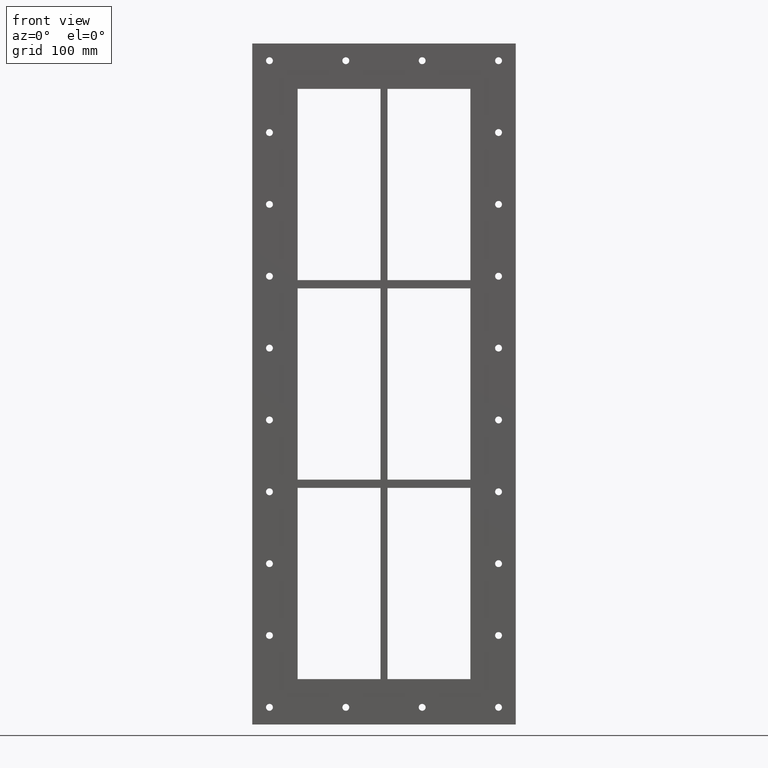
[diagram: clean part render]
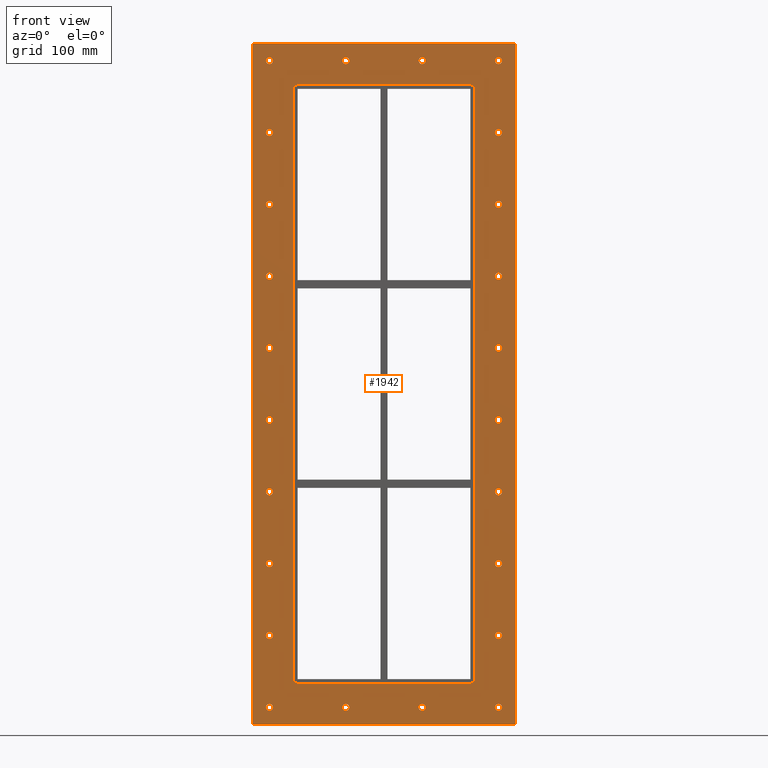
[diagram: same view with one face highlighted and labeled with its STEP entity id]
A machine part, front view. The second image highlights one B-rep face of the part: STEP entity #1942.
In plain terms, the highlighted planar face has unit normal (0, 1, 0).
Its self-contained STEP definition (entity closure, byte-faithful):
#84=CARTESIAN_POINT('',(-161.50000000000006,0.0,-470.0));
#85=VERTEX_POINT('',#84);
#86=CARTESIAN_POINT('',(-166.50000000000006,0.0,-470.0));
#87=DIRECTION('',(0.0,1.0,0.0));
#88=DIRECTION('',(1.0,0.0,0.0));
#89=AXIS2_PLACEMENT_3D('',#86,#87,#88);
#90=CIRCLE('',#89,5.0);
#91=EDGE_CURVE('',#85,#85,#90,.T.);
#112=CARTESIAN_POINT('',(171.5,0.0,-365.55999999999995));
#113=VERTEX_POINT('',#112);
#114=CARTESIAN_POINT('',(166.5,0.0,-365.55999999999995));
#115=DIRECTION('',(0.0,1.0,0.0));
#116=DIRECTION('',(1.0,0.0,0.0));
#117=AXIS2_PLACEMENT_3D('',#114,#115,#116);
#118=CIRCLE('',#117,5.0);
#119=EDGE_CURVE('',#113,#113,#118,.T.);
#140=CARTESIAN_POINT('',(-161.50000000000006,0.0,-365.55999999999995));
#141=VERTEX_POINT('',#140);
#142=CARTESIAN_POINT('',(-166.50000000000006,0.0,-365.55999999999995));
#143=DIRECTION('',(0.0,1.0,0.0));
#144=DIRECTION('',(1.0,0.0,0.0));
#145=AXIS2_PLACEMENT_3D('',#142,#143,#144);
#146=CIRCLE('',#145,5.0);
#147=EDGE_CURVE('',#141,#141,#146,.T.);
#168=CARTESIAN_POINT('',(171.5,0.0,-261.11999999999995));
#169=VERTEX_POINT('',#168);
#170=CARTESIAN_POINT('',(166.5,0.0,-261.11999999999995));
#171=DIRECTION('',(0.0,1.0,0.0));
#172=DIRECTION('',(1.0,0.0,0.0));
#173=AXIS2_PLACEMENT_3D('',#170,#171,#172);
#174=CIRCLE('',#173,5.0);
#175=EDGE_CURVE('',#169,#169,#174,.T.);
#196=CARTESIAN_POINT('',(-161.50000000000006,0.0,-261.11999999999995));
#197=VERTEX_POINT('',#196);
#198=CARTESIAN_POINT('',(-166.50000000000006,0.0,-261.11999999999995));
#199=DIRECTION('',(0.0,1.0,0.0));
#200=DIRECTION('',(1.0,0.0,0.0));
#201=AXIS2_PLACEMENT_3D('',#198,#199,#200);
#202=CIRCLE('',#201,5.0);
#203=EDGE_CURVE('',#197,#197,#202,.T.);
#224=CARTESIAN_POINT('',(171.5,0.0,-156.67999999999989));
#225=VERTEX_POINT('',#224);
#226=CARTESIAN_POINT('',(166.5,0.0,-156.67999999999989));
#227=DIRECTION('',(0.0,1.0,0.0));
#228=DIRECTION('',(1.0,0.0,0.0));
#229=AXIS2_PLACEMENT_3D('',#226,#227,#228);
#230=CIRCLE('',#229,5.0);
#231=EDGE_CURVE('',#225,#225,#230,.T.);
#252=CARTESIAN_POINT('',(-161.50000000000006,0.0,-156.67999999999989));
#253=VERTEX_POINT('',#252);
#254=CARTESIAN_POINT('',(-166.50000000000006,0.0,-156.67999999999989));
#255=DIRECTION('',(0.0,1.0,0.0));
#256=DIRECTION('',(1.0,0.0,0.0));
#257=AXIS2_PLACEMENT_3D('',#254,#255,#256);
#258=CIRCLE('',#257,5.0);
#259=EDGE_CURVE('',#253,#253,#258,.T.);
#280=CARTESIAN_POINT('',(171.5,0.0,-52.239999999999952));
#281=VERTEX_POINT('',#280);
#282=CARTESIAN_POINT('',(166.5,0.0,-52.239999999999952));
#283=DIRECTION('',(0.0,1.0,0.0));
#284=DIRECTION('',(1.0,0.0,0.0));
#285=AXIS2_PLACEMENT_3D('',#282,#283,#284);
#286=CIRCLE('',#285,5.0);
#287=EDGE_CURVE('',#281,#281,#286,.T.);
#308=CARTESIAN_POINT('',(-161.50000000000006,0.0,-52.239999999999952));
#309=VERTEX_POINT('',#308);
#310=CARTESIAN_POINT('',(-166.50000000000006,0.0,-52.239999999999952));
#311=DIRECTION('',(0.0,1.0,0.0));
#312=DIRECTION('',(1.0,0.0,0.0));
#313=AXIS2_PLACEMENT_3D('',#310,#311,#312);
#314=CIRCLE('',#313,5.0);
#315=EDGE_CURVE('',#309,#309,#314,.T.);
#336=CARTESIAN_POINT('',(171.5,0.0,52.200000000000074));
#337=VERTEX_POINT('',#336);
#338=CARTESIAN_POINT('',(166.5,0.0,52.200000000000074));
#339=DIRECTION('',(0.0,1.0,0.0));
#340=DIRECTION('',(1.0,0.0,0.0));
#341=AXIS2_PLACEMENT_3D('',#338,#339,#340);
#342=CIRCLE('',#341,5.0);
#343=EDGE_CURVE('',#337,#337,#342,.T.);
#364=CARTESIAN_POINT('',(-161.50000000000006,0.0,52.200000000000074));
#365=VERTEX_POINT('',#364);
#366=CARTESIAN_POINT('',(-166.50000000000006,0.0,52.200000000000074));
#367=DIRECTION('',(0.0,1.0,0.0));
#368=DIRECTION('',(1.0,0.0,0.0));
#369=AXIS2_PLACEMENT_3D('',#366,#367,#368);
#370=CIRCLE('',#369,5.0);
#371=EDGE_CURVE('',#365,#365,#370,.T.);
#392=CARTESIAN_POINT('',(171.5,0.0,156.6400000000001));
#393=VERTEX_POINT('',#392);
#394=CARTESIAN_POINT('',(166.5,0.0,156.6400000000001));
#395=DIRECTION('',(0.0,1.0,0.0));
#396=DIRECTION('',(1.0,0.0,0.0));
#397=AXIS2_PLACEMENT_3D('',#394,#395,#396);
#398=CIRCLE('',#397,5.0);
#399=EDGE_CURVE('',#393,#393,#398,.T.);
#420=CARTESIAN_POINT('',(-161.50000000000006,0.0,156.6400000000001));
#421=VERTEX_POINT('',#420);
#422=CARTESIAN_POINT('',(-166.50000000000006,0.0,156.6400000000001));
#423=DIRECTION('',(0.0,1.0,0.0));
#424=DIRECTION('',(1.0,0.0,0.0));
#425=AXIS2_PLACEMENT_3D('',#422,#423,#424);
#426=CIRCLE('',#425,5.0);
#427=EDGE_CURVE('',#421,#421,#426,.T.);
#448=CARTESIAN_POINT('',(171.5,0.0,261.08000000000004));
#449=VERTEX_POINT('',#448);
#450=CARTESIAN_POINT('',(166.5,0.0,261.08000000000004));
#451=DIRECTION('',(0.0,1.0,0.0));
#452=DIRECTION('',(1.0,0.0,0.0));
#453=AXIS2_PLACEMENT_3D('',#450,#451,#452);
#454=CIRCLE('',#453,5.0);
#455=EDGE_CURVE('',#449,#449,#454,.T.);
#476=CARTESIAN_POINT('',(-161.50000000000006,0.0,261.08000000000004));
#477=VERTEX_POINT('',#476);
#478=CARTESIAN_POINT('',(-166.50000000000006,0.0,261.08000000000004));
#479=DIRECTION('',(0.0,1.0,0.0));
#480=DIRECTION('',(1.0,0.0,0.0));
#481=AXIS2_PLACEMENT_3D('',#478,#479,#480);
#482=CIRCLE('',#481,5.0);
#483=EDGE_CURVE('',#477,#477,#482,.T.);
#504=CARTESIAN_POINT('',(171.5,0.0,365.5200000000001));
#505=VERTEX_POINT('',#504);
#506=CARTESIAN_POINT('',(166.5,0.0,365.5200000000001));
#507=DIRECTION('',(0.0,1.0,0.0));
#508=DIRECTION('',(1.0,0.0,0.0));
#509=AXIS2_PLACEMENT_3D('',#506,#507,#508);
#510=CIRCLE('',#509,5.0);
#511=EDGE_CURVE('',#505,#505,#510,.T.);
#532=CARTESIAN_POINT('',(-161.50000000000006,0.0,365.5200000000001));
#533=VERTEX_POINT('',#532);
#534=CARTESIAN_POINT('',(-166.50000000000006,0.0,365.5200000000001));
#535=DIRECTION('',(0.0,1.0,0.0));
#536=DIRECTION('',(1.0,0.0,0.0));
#537=AXIS2_PLACEMENT_3D('',#534,#535,#536);
#538=CIRCLE('',#537,5.0);
#539=EDGE_CURVE('',#533,#533,#538,.T.);
#560=CARTESIAN_POINT('',(-50.500000000000043,0.0,469.96000000000009));
#561=VERTEX_POINT('',#560);
#562=CARTESIAN_POINT('',(-55.500000000000043,0.0,469.96000000000009));
#563=DIRECTION('',(0.0,1.0,0.0));
#564=DIRECTION('',(1.0,0.0,0.0));
#565=AXIS2_PLACEMENT_3D('',#562,#563,#564);
#566=CIRCLE('',#565,5.0);
#567=EDGE_CURVE('',#561,#561,#566,.T.);
#588=CARTESIAN_POINT('',(-50.500000000000043,0.0,-470.0));
#589=VERTEX_POINT('',#588);
#590=CARTESIAN_POINT('',(-55.500000000000043,0.0,-470.0));
#591=DIRECTION('',(0.0,1.0,0.0));
#592=DIRECTION('',(1.0,0.0,0.0));
#593=AXIS2_PLACEMENT_3D('',#590,#591,#592);
#594=CIRCLE('',#593,5.0);
#595=EDGE_CURVE('',#589,#589,#594,.T.);
#616=CARTESIAN_POINT('',(60.499999999999972,0.0,469.96000000000009));
#617=VERTEX_POINT('',#616);
#618=CARTESIAN_POINT('',(55.499999999999972,0.0,469.96000000000009));
#619=DIRECTION('',(0.0,1.0,0.0));
#620=DIRECTION('',(1.0,0.0,0.0));
#621=AXIS2_PLACEMENT_3D('',#618,#619,#620);
#622=CIRCLE('',#621,5.0);
#623=EDGE_CURVE('',#617,#617,#622,.T.);
#644=CARTESIAN_POINT('',(60.499999999999972,0.0,-470.0));
#645=VERTEX_POINT('',#644);
#646=CARTESIAN_POINT('',(55.499999999999972,0.0,-470.0));
#647=DIRECTION('',(0.0,1.0,0.0));
#648=DIRECTION('',(1.0,0.0,0.0));
#649=AXIS2_PLACEMENT_3D('',#646,#647,#648);
#650=CIRCLE('',#649,5.0);
#651=EDGE_CURVE('',#645,#645,#650,.T.);
#672=CARTESIAN_POINT('',(171.5,0.0,-470.0));
#673=VERTEX_POINT('',#672);
#674=CARTESIAN_POINT('',(166.5,0.0,-470.0));
#675=DIRECTION('',(0.0,1.0,0.0));
#676=DIRECTION('',(1.0,0.0,0.0));
#677=AXIS2_PLACEMENT_3D('',#674,#675,#676);
#678=CIRCLE('',#677,5.0);
#679=EDGE_CURVE('',#673,#673,#678,.T.);
#700=CARTESIAN_POINT('',(-161.50000000000006,0.0,469.96000000000009));
#701=VERTEX_POINT('',#700);
#702=CARTESIAN_POINT('',(-166.50000000000006,0.0,469.96000000000009));
#703=DIRECTION('',(0.0,1.0,0.0));
#704=DIRECTION('',(1.0,0.0,0.0));
#705=AXIS2_PLACEMENT_3D('',#702,#703,#704);
#706=CIRCLE('',#705,5.0);
#707=EDGE_CURVE('',#701,#701,#706,.T.);
#728=CARTESIAN_POINT('',(171.5,0.0,469.96000000000009));
#729=VERTEX_POINT('',#728);
#730=CARTESIAN_POINT('',(166.5,0.0,469.96000000000009));
#731=DIRECTION('',(0.0,1.0,0.0));
#732=DIRECTION('',(1.0,0.0,0.0));
#733=AXIS2_PLACEMENT_3D('',#730,#731,#732);
#734=CIRCLE('',#733,5.0);
#735=EDGE_CURVE('',#729,#729,#734,.T.);
#1761=CARTESIAN_POINT('',(-1.242027E-014,0.0,3.726080E-014));
#1762=DIRECTION('',(0.0,1.0,0.0));
#1763=DIRECTION('',(0.0,0.0,1.0));
#1764=AXIS2_PLACEMENT_3D('',#1761,#1762,#1763);
#1765=PLANE('',#1764);
#1766=CARTESIAN_POINT('',(-191.50000000000003,0.0,495.00000000000006));
#1767=VERTEX_POINT('',#1766);
#1768=CARTESIAN_POINT('',(191.5,0.0,495.00000000000006));
#1769=VERTEX_POINT('',#1768);
#1770=CARTESIAN_POINT('',(-191.50000000000003,0.0,495.00000000000006));
#1771=DIRECTION('',(1.0,0.0,0.0));
#1772=VECTOR('',#1771,383.0);
#1773=LINE('',#1770,#1772);
#1774=EDGE_CURVE('',#1767,#1769,#1773,.T.);
#1775=ORIENTED_EDGE('',*,*,#1774,.F.);
#1776=CARTESIAN_POINT('',(-191.50000000000003,0.0,-495.0));
#1777=VERTEX_POINT('',#1776);
#1778=CARTESIAN_POINT('',(-191.50000000000003,0.0,-495.0));
#1779=DIRECTION('',(0.0,0.0,1.0));
#1780=VECTOR('',#1779,990.0);
#1781=LINE('',#1778,#1780);
#1782=EDGE_CURVE('',#1777,#1767,#1781,.T.);
#1783=ORIENTED_EDGE('',*,*,#1782,.F.);
#1784=CARTESIAN_POINT('',(191.5,0.0,-495.0));
#1785=VERTEX_POINT('',#1784);
#1786=CARTESIAN_POINT('',(191.5,0.0,-495.0));
#1787=DIRECTION('',(-1.0,0.0,0.0));
#1788=VECTOR('',#1787,383.0);
#1789=LINE('',#1786,#1788);
#1790=EDGE_CURVE('',#1785,#1777,#1789,.T.);
#1791=ORIENTED_EDGE('',*,*,#1790,.F.);
#1792=CARTESIAN_POINT('',(191.5,0.0,495.00000000000006));
#1793=DIRECTION('',(0.0,0.0,-1.0));
#1794=VECTOR('',#1793,990.0);
#1795=LINE('',#1792,#1794);
#1796=EDGE_CURVE('',#1769,#1785,#1795,.T.);
#1797=ORIENTED_EDGE('',*,*,#1796,.F.);
#1798=EDGE_LOOP('',(#1775,#1783,#1791,#1797));
#1799=FACE_OUTER_BOUND('',#1798,.T.);
#1800=ORIENTED_EDGE('',*,*,#91,.T.);
#1801=EDGE_LOOP('',(#1800));
#1802=FACE_BOUND('',#1801,.T.);
#1803=ORIENTED_EDGE('',*,*,#119,.T.);
#1804=EDGE_LOOP('',(#1803));
#1805=FACE_BOUND('',#1804,.T.);
#1806=ORIENTED_EDGE('',*,*,#147,.T.);
#1807=EDGE_LOOP('',(#1806));
#1808=FACE_BOUND('',#1807,.T.);
#1809=ORIENTED_EDGE('',*,*,#175,.T.);
#1810=EDGE_LOOP('',(#1809));
#1811=FACE_BOUND('',#1810,.T.);
#1812=ORIENTED_EDGE('',*,*,#203,.T.);
#1813=EDGE_LOOP('',(#1812));
#1814=FACE_BOUND('',#1813,.T.);
#1815=ORIENTED_EDGE('',*,*,#231,.T.);
#1816=EDGE_LOOP('',(#1815));
#1817=FACE_BOUND('',#1816,.T.);
#1818=ORIENTED_EDGE('',*,*,#259,.T.);
#1819=EDGE_LOOP('',(#1818));
#1820=FACE_BOUND('',#1819,.T.);
#1821=ORIENTED_EDGE('',*,*,#287,.T.);
#1822=EDGE_LOOP('',(#1821));
#1823=FACE_BOUND('',#1822,.T.);
#1824=ORIENTED_EDGE('',*,*,#315,.T.);
#1825=EDGE_LOOP('',(#1824));
#1826=FACE_BOUND('',#1825,.T.);
#1827=ORIENTED_EDGE('',*,*,#343,.T.);
#1828=EDGE_LOOP('',(#1827));
#1829=FACE_BOUND('',#1828,.T.);
#1830=ORIENTED_EDGE('',*,*,#371,.T.);
#1831=EDGE_LOOP('',(#1830));
#1832=FACE_BOUND('',#1831,.T.);
#1833=ORIENTED_EDGE('',*,*,#399,.T.);
#1834=EDGE_LOOP('',(#1833));
#1835=FACE_BOUND('',#1834,.T.);
#1836=ORIENTED_EDGE('',*,*,#427,.T.);
#1837=EDGE_LOOP('',(#1836));
#1838=FACE_BOUND('',#1837,.T.);
#1839=ORIENTED_EDGE('',*,*,#455,.T.);
#1840=EDGE_LOOP('',(#1839));
#1841=FACE_BOUND('',#1840,.T.);
#1842=ORIENTED_EDGE('',*,*,#483,.T.);
#1843=EDGE_LOOP('',(#1842));
#1844=FACE_BOUND('',#1843,.T.);
#1845=ORIENTED_EDGE('',*,*,#511,.T.);
#1846=EDGE_LOOP('',(#1845));
#1847=FACE_BOUND('',#1846,.T.);
#1848=ORIENTED_EDGE('',*,*,#539,.T.);
#1849=EDGE_LOOP('',(#1848));
#1850=FACE_BOUND('',#1849,.T.);
#1851=ORIENTED_EDGE('',*,*,#567,.T.);
#1852=EDGE_LOOP('',(#1851));
#1853=FACE_BOUND('',#1852,.T.);
#1854=ORIENTED_EDGE('',*,*,#595,.T.);
#1855=EDGE_LOOP('',(#1854));
#1856=FACE_BOUND('',#1855,.T.);
#1857=ORIENTED_EDGE('',*,*,#623,.T.);
#1858=EDGE_LOOP('',(#1857));
#1859=FACE_BOUND('',#1858,.T.);
#1860=ORIENTED_EDGE('',*,*,#651,.T.);
#1861=EDGE_LOOP('',(#1860));
#1862=FACE_BOUND('',#1861,.T.);
#1863=ORIENTED_EDGE('',*,*,#679,.T.);
#1864=EDGE_LOOP('',(#1863));
#1865=FACE_BOUND('',#1864,.T.);
#1866=ORIENTED_EDGE('',*,*,#707,.T.);
#1867=EDGE_LOOP('',(#1866));
#1868=FACE_BOUND('',#1867,.T.);
#1869=ORIENTED_EDGE('',*,*,#735,.T.);
#1870=EDGE_LOOP('',(#1869));
#1871=FACE_BOUND('',#1870,.T.);
#1872=CARTESIAN_POINT('',(-131.50000000000003,0.0,-429.00000000000006));
#1873=VERTEX_POINT('',#1872);
#1874=CARTESIAN_POINT('',(-125.50000000000004,0.0,-435.0));
#1875=VERTEX_POINT('',#1874);
#1876=CARTESIAN_POINT('',(-125.50000000000004,0.0,-429.00000000000006));
#1877=DIRECTION('',(0.0,-1.0,0.0));
#1878=DIRECTION('',(-0.70710678118655,0.0,-0.707106781186545));
#1879=AXIS2_PLACEMENT_3D('',#1876,#1877,#1878);
#1880=CIRCLE('',#1879,6.000000000000001);
#1881=EDGE_CURVE('',#1873,#1875,#1880,.T.);
#1882=ORIENTED_EDGE('',*,*,#1881,.F.);
#1883=CARTESIAN_POINT('',(-131.50000000000003,0.0,429.00000000000006));
#1884=VERTEX_POINT('',#1883);
#1885=CARTESIAN_POINT('',(-131.50000000000003,0.0,429.0));
#1886=DIRECTION('',(0.0,0.0,-1.0));
#1887=VECTOR('',#1886,858.0);
#1888=LINE('',#1885,#1887);
#1889=EDGE_CURVE('',#1884,#1873,#1888,.T.);
#1890=ORIENTED_EDGE('',*,*,#1889,.F.);
#1891=CARTESIAN_POINT('',(-125.5,0.0,435.00000000000011));
#1892=VERTEX_POINT('',#1891);
#1893=CARTESIAN_POINT('',(-125.5,0.0,429.00000000000006));
#1894=DIRECTION('',(0.0,-1.0,0.0));
#1895=DIRECTION('',(-0.707106781186543,0.0,0.707106781186552));
#1896=AXIS2_PLACEMENT_3D('',#1893,#1894,#1895);
#1897=CIRCLE('',#1896,6.0);
#1898=EDGE_CURVE('',#1892,#1884,#1897,.T.);
#1899=ORIENTED_EDGE('',*,*,#1898,.F.);
#1900=CARTESIAN_POINT('',(125.5,0.0,435.00000000000011));
#1901=VERTEX_POINT('',#1900);
#1902=CARTESIAN_POINT('',(125.50000000000001,0.0,435.00000000000011));
#1903=DIRECTION('',(-1.0,0.0,0.0));
#1904=VECTOR('',#1903,251.0);
#1905=LINE('',#1902,#1904);
#1906=EDGE_CURVE('',#1901,#1892,#1905,.T.);
#1907=ORIENTED_EDGE('',*,*,#1906,.F.);
#1908=CARTESIAN_POINT('',(131.5,0.0,429.00000000000011));
#1909=VERTEX_POINT('',#1908);
#1910=CARTESIAN_POINT('',(125.5,0.0,429.00000000000011));
#1911=DIRECTION('',(0.0,-1.0,0.0));
#1912=DIRECTION('',(0.707106781186541,0.0,0.707106781186554));
#1913=AXIS2_PLACEMENT_3D('',#1910,#1911,#1912);
#1914=CIRCLE('',#1913,6.0);
#1915=EDGE_CURVE('',#1909,#1901,#1914,.T.);
#1916=ORIENTED_EDGE('',*,*,#1915,.F.);
#1917=CARTESIAN_POINT('',(131.5,0.0,-428.99999999999989));
#1918=VERTEX_POINT('',#1917);
#1919=CARTESIAN_POINT('',(131.5,0.0,-428.99999999999989));
#1920=DIRECTION('',(0.0,0.0,1.0));
#1921=VECTOR('',#1920,858.0);
#1922=LINE('',#1919,#1921);
#1923=EDGE_CURVE('',#1918,#1909,#1922,.T.);
#1924=ORIENTED_EDGE('',*,*,#1923,.F.);
#1925=CARTESIAN_POINT('',(125.49999999999997,0.0,-435.0));
#1926=VERTEX_POINT('',#1925);
#1927=CARTESIAN_POINT('',(125.49999999999997,0.0,-428.99999999999989));
#1928=DIRECTION('',(0.0,-1.0,0.0));
#1929=DIRECTION('',(0.707106781186543,0.0,-0.707106781186552));
#1930=AXIS2_PLACEMENT_3D('',#1927,#1928,#1929);
#1931=CIRCLE('',#1930,6.0);
#1932=EDGE_CURVE('',#1926,#1918,#1931,.T.);
#1933=ORIENTED_EDGE('',*,*,#1932,.F.);
#1934=CARTESIAN_POINT('',(-125.50000000000004,0.0,-435.0));
#1935=DIRECTION('',(1.0,0.0,0.0));
#1936=VECTOR('',#1935,251.0);
#1937=LINE('',#1934,#1936);
#1938=EDGE_CURVE('',#1875,#1926,#1937,.T.);
#1939=ORIENTED_EDGE('',*,*,#1938,.F.);
#1940=EDGE_LOOP('',(#1882,#1890,#1899,#1907,#1916,#1924,#1933,#1939));
#1941=FACE_BOUND('',#1940,.T.);
#1942=ADVANCED_FACE('',(#1799,#1802,#1805,#1808,#1811,#1814,#1817,#1820,#1823,#1826,#1829,#1832,#1835,#1838,#1841,#1844,#1847,#1850,#1853,#1856,#1859,#1862,#1865,#1868,#1871,#1941),#1765,.F.);